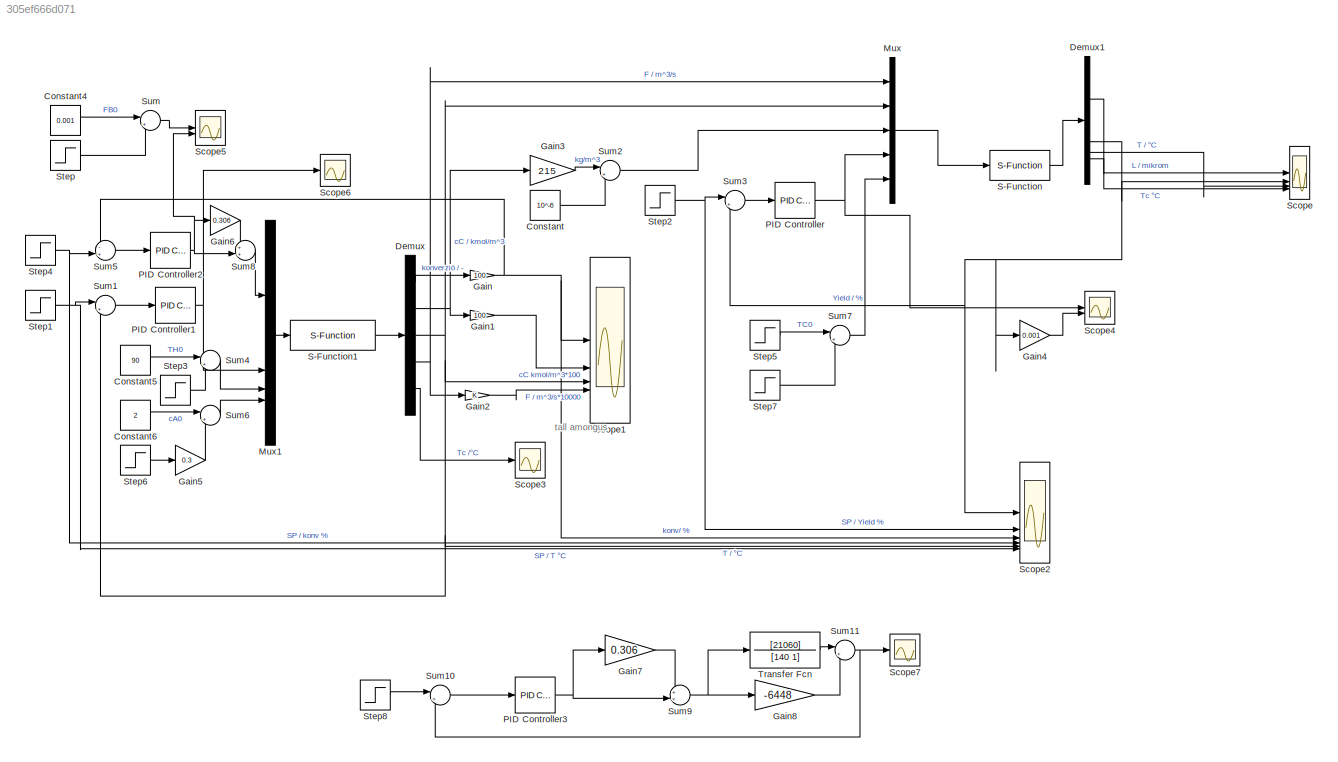
MODEL slx_305ef666d071
KIND model
CONFIG AbsTol = auto
CONFIG EnableMultiTasking = off
CONFIG FixedStep = auto
CONFIG MaxStep = auto
CONFIG MinStep = auto
CONFIG RelTol = 1e-3
CONFIG SampleTimeConstraint = Unconstrained
CONFIG SolverName = VariableStepAuto
CONFIG StartTime = 0.0
CONFIG StopTime = 2*10^4
BLOCK [Constant] Constant
  Value = 10^-6
BLOCK [Constant] Constant4
  Value = 0.001
BLOCK [Constant] Constant5
  Value = 90
BLOCK [Constant] Constant6
  Value = 2
BLOCK [Demux] Demux
  Outputs = 5
BLOCK [Demux] Demux1
BLOCK [Gain] Gain
  Gain = 100
BLOCK [Gain] Gain1
  Gain = 100
BLOCK [Gain] Gain2
BLOCK [Gain] Gain3
  Gain = 215
BLOCK [Gain] Gain4
  Gain = 0.001
BLOCK [Gain] Gain5
  Gain = 0.3
BLOCK [Gain] Gain6
  Gain = 0.306
BLOCK [Gain] Gain7
  Gain = 0.306
BLOCK [Gain] Gain8
  Gain = -6448
BLOCK [Mux] Mux
  DisplayOption = bar
  Inputs = 5
BLOCK [Mux] Mux1
  DisplayOption = bar
BLOCK [Reference] PID Controller  REF=slpidlib/PID Controller
  LibrarySourceBlock = simulink/Continuous/PID Controller
  SourceBlock = slpidlib/PID Controller
  SourceType = PID 1dof
BLOCK [Reference] PID Controller1  REF=slpidlib/PID Controller
  LibrarySourceBlock = simulink/Continuous/PID Controller
  SourceBlock = slpidlib/PID Controller
  SourceType = PID 1dof
BLOCK [Reference] PID Controller2  REF=slpidlib/PID Controller
  LibrarySourceBlock = simulink/Continuous/PID Controller
  SourceBlock = slpidlib/PID Controller
  SourceType = PID 1dof
BLOCK [Reference] PID Controller3  REF=slpidlib/PID Controller
  LibrarySourceBlock = simulink/Continuous/PID Controller
  SourceBlock = slpidlib/PID Controller
  SourceType = PID 1dof
BLOCK [S-Function] S-Function
  EnableBusSupport = off
  FunctionName = KrisztaS
  SFcnIsStateOwnerBlock = off
  SFunctionDeploymentMode = off
BLOCK [S-Function] S-Function1
  EnableBusSupport = off
  FunctionName = ReaktorSMIMO
  SFcnIsStateOwnerBlock = off
  SFunctionDeploymentMode = off
BLOCK [Scope] Scope
  Floating = off
  NumInputPorts = 4
  ScopeSpecificationString = Simulink.scopes.TimeScopeBlockCfg('CurrentConfiguration', extmgr.ConfigurationSet(extmgr.Configuration('Core','General UI',true),extmgr.Configuration('Core','Source UI',true),extmgr.Configuration('Sources','WiredSimulink',true,'DataLoggingVariableName','ScopeData1'),extmgr.Configuration('Visuals','Time Domain',true,'SerializedDisplays',{struct('MinYLimReal','-15.19774','MaxYLimReal','136.77968','Y...<+1790ch>
BLOCK [Scope] Scope1
  Floating = off
  NumInputPorts = 4
  ScopeSpecificationString = Simulink.scopes.TimeScopeBlockCfg('CurrentConfiguration', extmgr.ConfigurationSet(extmgr.Configuration('Core','General UI',true),extmgr.Configuration('Core','Source UI',true),extmgr.Configuration('Sources','WiredSimulink',true,'DataLoggingVariableName','ScopeData2'),extmgr.Configuration('Visuals','Time Domain',true,'SerializedDisplays',{struct('MinYLimReal','78.66146','MaxYLimReal','92.46699','YLa...<+1488ch>
BLOCK [Scope] Scope2
  Floating = off
  NumInputPorts = 6
  ScopeSpecificationString = Simulink.scopes.TimeScopeBlockCfg('CurrentConfiguration', extmgr.ConfigurationSet(extmgr.Configuration('Core','General UI',true),extmgr.Configuration('Core','Source UI',true),extmgr.Configuration('Sources','WiredSimulink',true),extmgr.Configuration('Visuals','Time Domain',true,'SerializedDisplays',{struct('MinYLimReal','79.2617','MaxYLimReal','91.56663','YLabelReal','','MinYLimMag','79.2617','MaxY...<+1462ch>
BLOCK [Scope] Scope3
  Floating = off
  NumInputPorts = 1
  ScopeSpecificationString = Simulink.scopes.TimeScopeBlockCfg('CurrentConfiguration', extmgr.ConfigurationSet(extmgr.Configuration('Core','General UI',true),extmgr.Configuration('Core','Source UI',true),extmgr.Configuration('Sources','WiredSimulink',true,'DataLoggingVariableName','ScopeData1'),extmgr.Configuration('Visuals','Time Domain',true,'SerializedDisplays',{struct('MinYLimReal','11.99429','MaxYLimReal','92.05135','YLa...<+1442ch>
BLOCK [Scope] Scope4
  Floating = off
  NumInputPorts = 2
  ScopeSpecificationString = Simulink.scopes.TimeScopeBlockCfg('CurrentConfiguration', extmgr.ConfigurationSet(extmgr.Configuration('Core','General UI',true),extmgr.Configuration('Core','Source UI',true),extmgr.Configuration('Sources','WiredSimulink',true,'DataLoggingVariableName','ScopeData2'),extmgr.Configuration('Visuals','Time Domain',true,'SerializedDisplays',{struct('MinYLimReal','-0.0125','MaxYLimReal','0.1125','YLabel...<+1429ch>
BLOCK [Scope] Scope5
  Floating = off
  NumInputPorts = 2
  ScopeSpecificationString = Simulink.scopes.TimeScopeBlockCfg('CurrentConfiguration', extmgr.ConfigurationSet(extmgr.Configuration('Core','General UI',true),extmgr.Configuration('Core','Source UI',true),extmgr.Configuration('Sources','WiredSimulink',true,'DataLoggingVariableName','ScopeData3'),extmgr.Configuration('Visuals','Time Domain',true,'SerializedDisplays',{struct('MinYLimReal','-0.00012','MaxYLimReal','0.00113','YLab...<+1453ch>
BLOCK [Scope] Scope6
  Floating = off
  NumInputPorts = 1
  ScopeSpecificationString = Simulink.scopes.TimeScopeBlockCfg('CurrentConfiguration', extmgr.ConfigurationSet(extmgr.Configuration('Core','General UI',true),extmgr.Configuration('Core','Source UI',true),extmgr.Configuration('Sources','WiredSimulink',true,'DataLoggingVariableName','ScopeData1'),extmgr.Configuration('Visuals','Time Domain',true,'SerializedDisplays',{struct('MinYLimReal','-0.00074','MaxYLimReal','0.01119','YLab...<+1447ch>
BLOCK [Scope] Scope7
  Floating = off
  NumInputPorts = 1
  ScopeSpecificationString = Simulink.scopes.TimeScopeBlockCfg('CurrentConfiguration', extmgr.ConfigurationSet(extmgr.Configuration('Core','General UI',true),extmgr.Configuration('Core','Source UI',true),extmgr.Configuration('Sources','WiredSimulink',true,'DataLoggingVariableName','ScopeData2'),extmgr.Configuration('Visuals','Time Domain',true),extmgr.Configuration('Tools','Plot Navigation',true),extmgr.Configuration('Tools',...<+40ch>
BLOCK [Step] Step
  After = 0.0005
  Before = 0.000
  SampleTime = 0
  Time = 5000
BLOCK [Step] Step1
  After = 45
  SampleTime = 0
  Time = 0
BLOCK [Step] Step2
  After = 90
  SampleTime = 0
BLOCK [Step] Step3
  After = 10
  SampleTime = 0
  Time = 3600
BLOCK [Step] Step4
  After = 85
  SampleTime = 0
  Time = 0
BLOCK [Step] Step5
  After = 0
  SampleTime = 0
  Time = 0
BLOCK [Step] Step6
  After = 2
  SampleTime = 0
  Time = 10800
BLOCK [Step] Step7
  After = -10
  SampleTime = 0
  Time = 7200
BLOCK [Step] Step8
  SampleTime = 0
BLOCK [Sum] Sum
  Inputs = |++
BLOCK [Sum] Sum1
  Inputs = |+-
BLOCK [Sum] Sum10
  Inputs = |+-
BLOCK [Sum] Sum11
  Inputs = |++
BLOCK [Sum] Sum2
  Inputs = |++
BLOCK [Sum] Sum3
  Inputs = |+-
BLOCK [Sum] Sum4
  Inputs = |++
BLOCK [Sum] Sum5
  Inputs = -+|
BLOCK [Sum] Sum6
  Inputs = |++
BLOCK [Sum] Sum7
  Inputs = |++
BLOCK [Sum] Sum8
  Inputs = ++|
BLOCK [Sum] Sum9
  Inputs = ++|
BLOCK [TransferFcn] Transfer Fcn
  Denominator = [140 1]
  Numerator = [21060]
ANNOTATION (root): tall amongus
LINE Constant4:1 -> Sum:1
LINE Constant5:1 -> Sum4:1
LINE Constant6:1 -> Sum6:1
LINE Constant:1 -> Sum2:2
LINE Demux1:1 -> Scope:1
NET Demux1:2 -> Gain4:1, Scope2:1, Scope:2, Sum3:2
LINE Demux1:3 -> Scope:3
LINE Demux1:4 -> Scope:4
LINE Demux:1 -> Gain:1
NET Demux:2 -> Gain1:1, Gain3:1
NET Demux:3 -> Mux:2, Scope1:3, Scope2:5, Sum1:2
NET Demux:4 -> Gain2:1, Mux:1
LINE Demux:5 -> Scope3:1
LINE Gain1:1 -> Scope1:2
LINE Gain2:1 -> Scope1:4
LINE Gain3:1 -> Sum2:1
LINE Gain4:1 -> Scope4:2
LINE Gain5:1 -> Sum6:2
LINE Gain6:1 -> Sum8:1
LINE Gain7:1 -> Sum9:1
LINE Gain8:1 -> Sum11:2
NET Gain:1 -> Scope1:1, Scope2:3, Sum5:1
LINE Mux1:1 -> S-Function1:1
LINE Mux:1 -> S-Function:1
NET PID Controller1:1 -> Mux1:2, Scope6:1
NET PID Controller2:1 -> Gain6:1, Scope5:2, Sum8:2
NET PID Controller3:1 -> Gain7:1, Sum9:2
NET PID Controller:1 -> Mux:4, Scope4:1
LINE S-Function1:1 -> Demux:1
LINE S-Function:1 -> Demux1:1
NET Step1:1 -> Scope2:6, Sum1:1
NET Step2:1 -> Scope2:2, Sum3:1
LINE Step3:1 -> Sum4:2
NET Step4:1 -> Scope2:4, Sum5:2
LINE Step5:1 -> Sum7:1
LINE Step6:1 -> Gain5:1
LINE Step7:1 -> Sum7:2
LINE Step8:1 -> Sum10:1
LINE Step:1 -> Sum:2
LINE Sum10:1 -> PID Controller3:1
NET Sum11:1 -> Scope7:1, Sum10:2
LINE Sum1:1 -> PID Controller1:1
LINE Sum2:1 -> Mux:3
LINE Sum3:1 -> PID Controller:1
LINE Sum4:1 -> Mux1:3
LINE Sum5:1 -> PID Controller2:1
LINE Sum6:1 -> Mux1:4
LINE Sum7:1 -> Mux:5
LINE Sum8:1 -> Mux1:1
NET Sum9:1 -> Gain8:1, Transfer Fcn:1
LINE Sum:1 -> Scope5:1
LINE Transfer Fcn:1 -> Sum11:1
note: NET lines group one-source signal fan-out (src -> all destinations, sorted); 1:1 wires keep LINE
